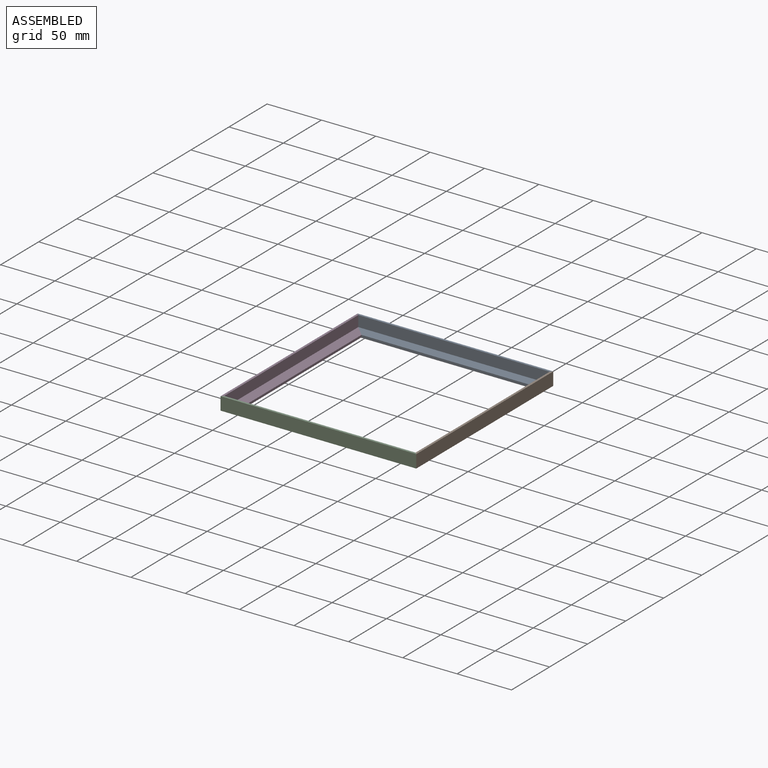
[diagram: assembled view]
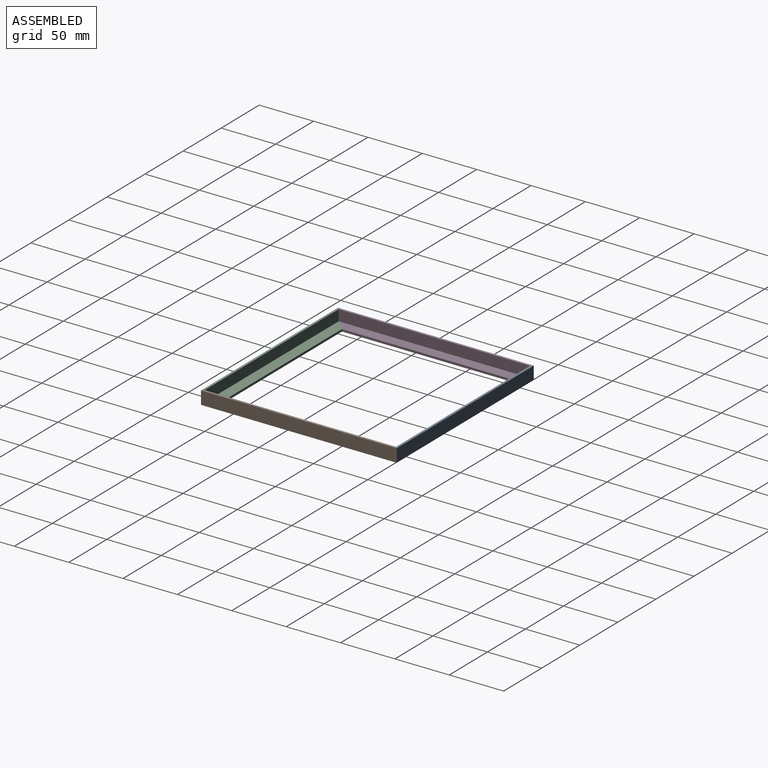
[diagram: assembled view, second angle]
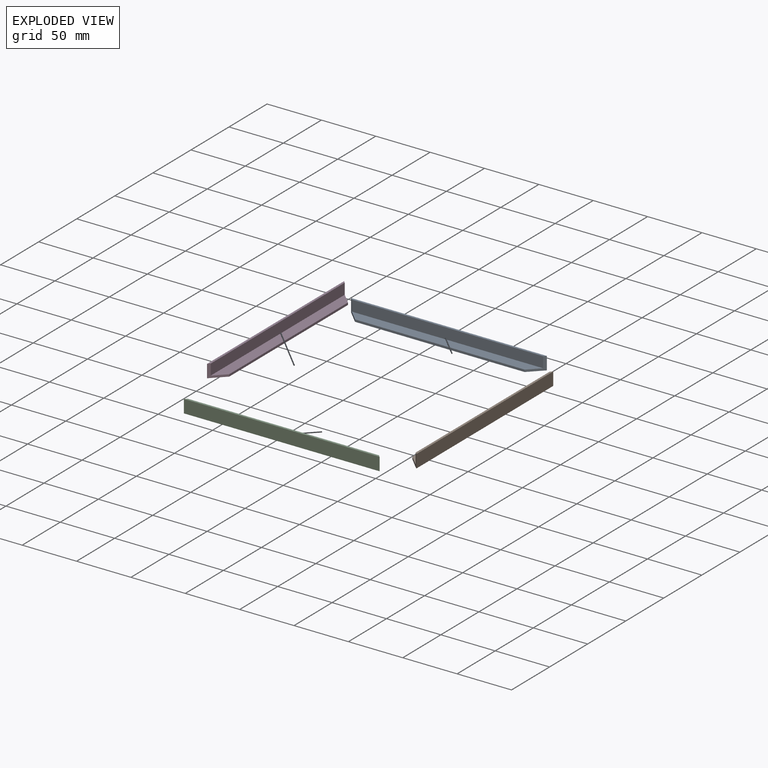
[diagram: exploded view]
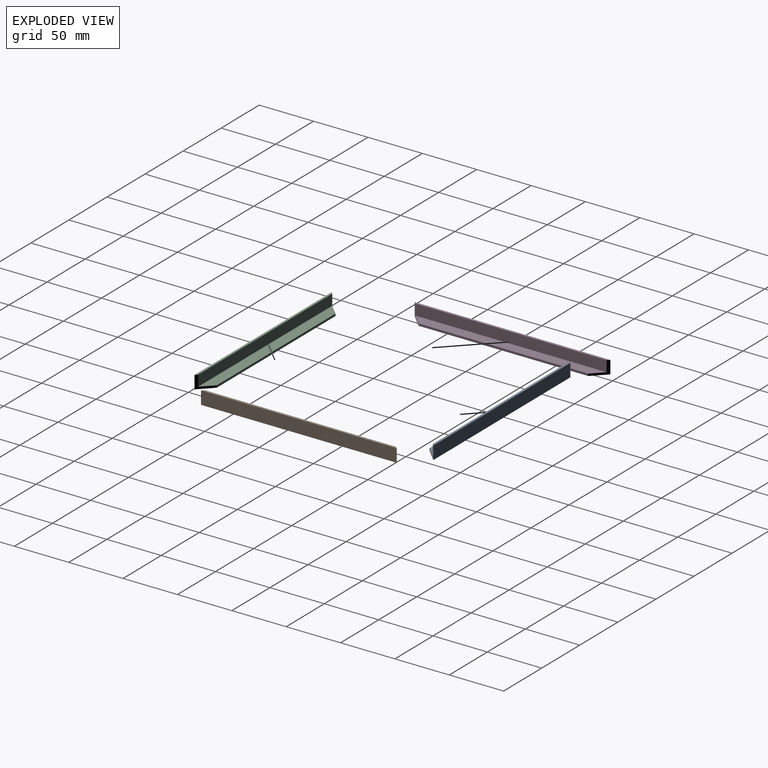
[diagram: exploded view, second angle]
ASSEMBLY  parts=4 mates=3
PART A: 8 faces, bbox 180x12x12 mm
  f0: plane 156x2mm, normal (0,1,0), area 312mm2, adj f2,f4,f6,f7
  f1: plane 180x2mm, normal (0,0,1), area 356mm2, adj f3,f5,f6,f7
  f2: plane 180x12mm, normal (0,0,-1), area 2016mm2, adj f0,f5,f6,f7
  f3: plane 176x10mm, normal (0,1,0), area 1760mm2, adj f1,f4,f6,f7
  f4: plane 176x10mm, normal (0,0,1), area 1660mm2, adj f0,f3,f6,f7
  f5: plane 180x12mm, normal (0,-1,0), area 2160mm2, adj f1,f2,f6,f7
  f6: plane 12x12mm, normal (0.71,0.71,0), area 62.2mm2, adj f0,f1,f2,f3,f4,f5
  f7: plane 12x12mm, normal (-0.71,0.71,0), area 62.2mm2, adj f0,f1,f2,f3,f4,f5
PART B: same geometry as A
PART C: same geometry as A
PART D: same geometry as A
PLACE A rot(axis=(0,0,1),180deg) t=(-270.37,249.34,107.51)mm
PLACE B rot(axis=(0,0,1),90deg) t=(-186.37,165.34,107.51)mm
PLACE C t=(-270.37,81.34,107.51)mm
PLACE D rot(axis=(0,0,-1),90deg) t=(-354.37,165.34,107.51)mm
MATE fastened A.f7 <-> B.f6  axis (0.71,-0.71,0) through (-182.37,253.34,114.51)mm
MATE fastened D.f6 <-> C.f7  axis (0.71,-0.71,0) through (-358.37,77.34,114.51)mm
MATE fastened B.f7 <-> C.f6  axis (-0.71,-0.71,0) through (-182.37,77.34,114.51)mm
